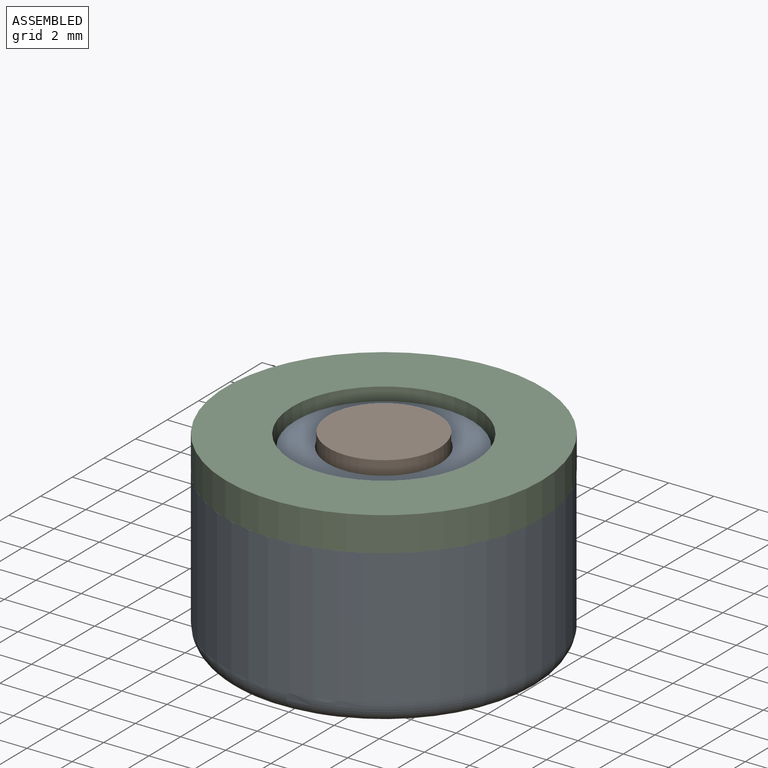
[diagram: assembled view]
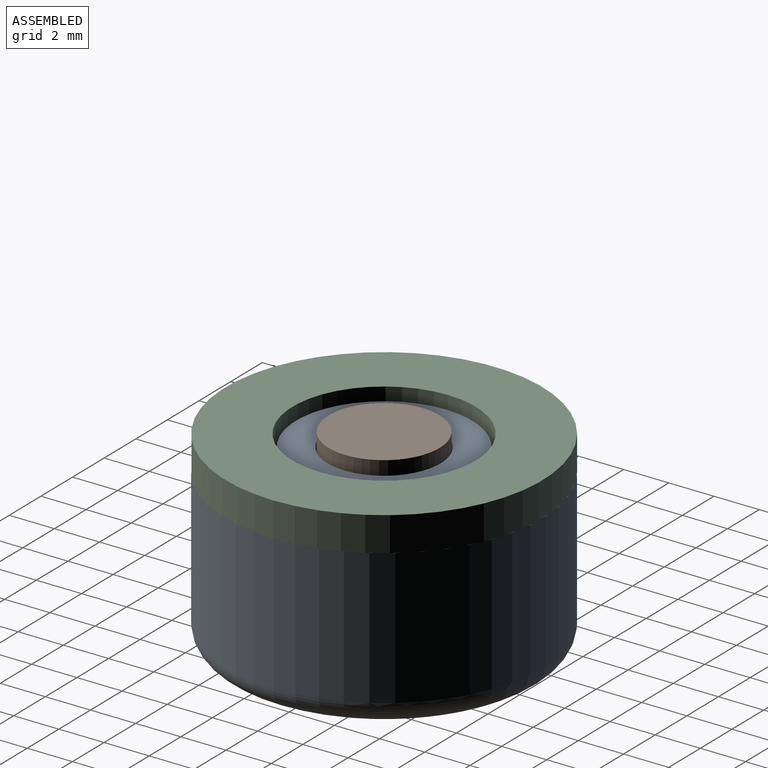
[diagram: assembled view, second angle]
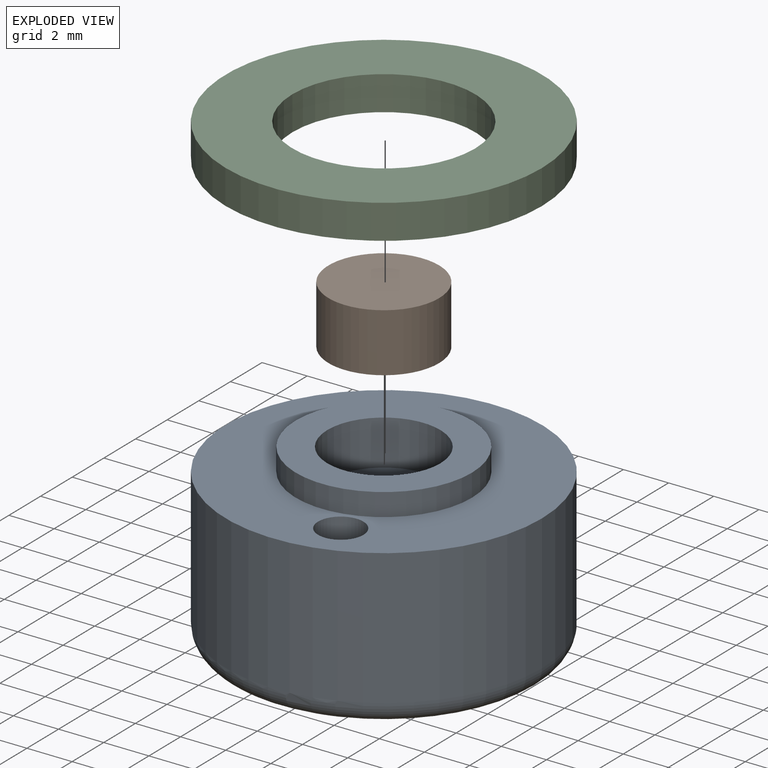
[diagram: exploded view]
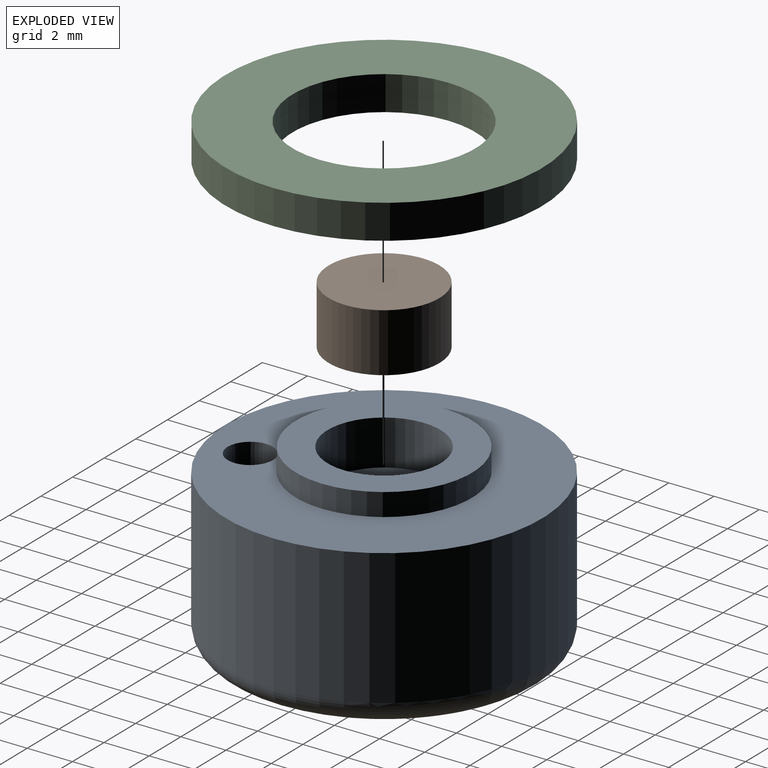
[diagram: exploded view, second angle]
ASSEMBLY  parts=3 mates=2
PART A: 11 faces, bbox 15.2x15.2x8 mm
  f0: cylinder r=7mm len=14mm, axis (0,0,-1), area 263.9mm2, adj f3,f10
  f1: plane 12x12mm, normal (0,0,-1), area 90.4mm2, adj f8,f9,f10
  f2: cylinder r=3.9mm len=7.8mm, axis (0,0,1), area 24.5mm2, adj f3,f4
  f3: plane 14x14mm, normal (0,0,1), area 103mm2, adj f0,f2,f8
  f4: plane 7.8x7.8mm, normal (0,0,1), area 28.1mm2, adj f2,f5
  f5: cylinder r=2.5mm len=5mm, axis (0,0,1), area 31.4mm2, adj f4,f6
  f6: plane 5x5mm, normal (0,0,1), area 12.6mm2, adj f5,f7
  f7: cylinder r=1.5mm len=5mm, axis (0,0,1), area 47.1mm2, adj f6,f9
  f8: cylinder r=1mm len=7mm, axis (0,0,1), area 44mm2, adj f1,f3,f10
  f9: torus R=2.5mm, axis (0,0,1), area 18.4mm2, adj f1,f7
  f10: torus R=6mm, axis (0,0,1), area 65.4mm2, adj f0,f1,f8
PART B: 3 faces, bbox 4.9x4.9x2.6 mm
  f0: cylinder r=2.45mm len=4.9mm, axis (0,0,-1), area 40mm2, adj f1,f2
  f1: plane 4.9x4.9mm, normal (0,0,1), area 18.9mm2, adj f0
  f2: plane 4.9x4.9mm, normal (0,0,-1), area 18.9mm2, adj f0
PART C: 4 faces, bbox 14x14x1.5 mm
  f0: cylinder r=4.05mm len=8.1mm, axis (0,0,-1), area 38.7mm2, adj f2,f3
  f1: cylinder r=7mm len=14mm, axis (0,0,-1), area 66.9mm2, adj f2,f3
  f2: plane 14x14mm, normal (0,0,1), area 102.4mm2, adj f0,f1
  f3: plane 14x14mm, normal (0,0,-1), area 102.4mm2, adj f0,f1
PLACE A at identity
PLACE B t=(-4.04,33.68,6)mm
PLACE C t=(-21.44,7,7)mm
MATE fastened B.f0 <-> A.f7  axis (0,0,-1) through (0,0,6)mm
MATE fastened C.f0 <-> A.f2  axis (0,0,-1) through (0,0,7)mm
